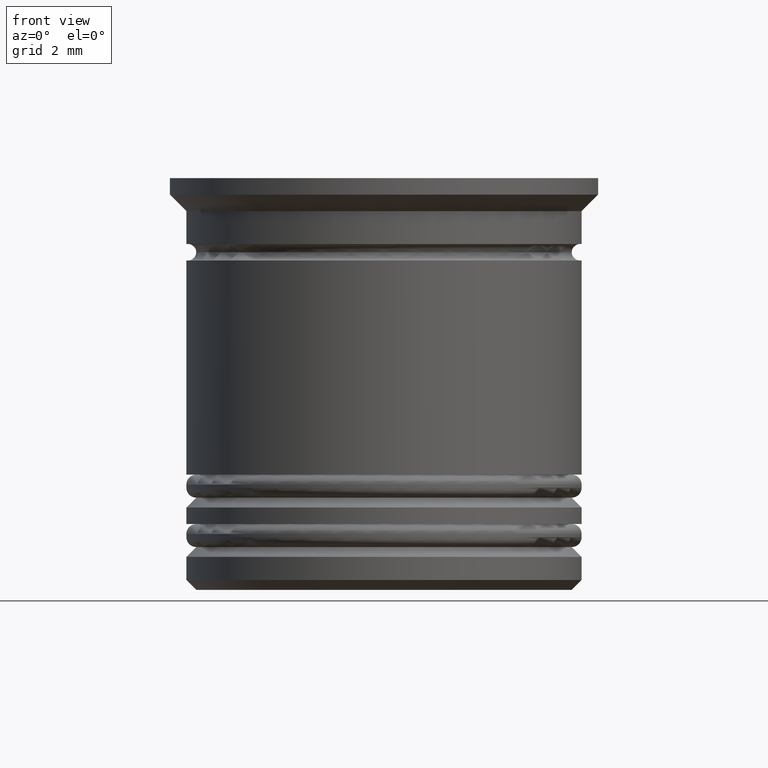
[diagram: clean part render]
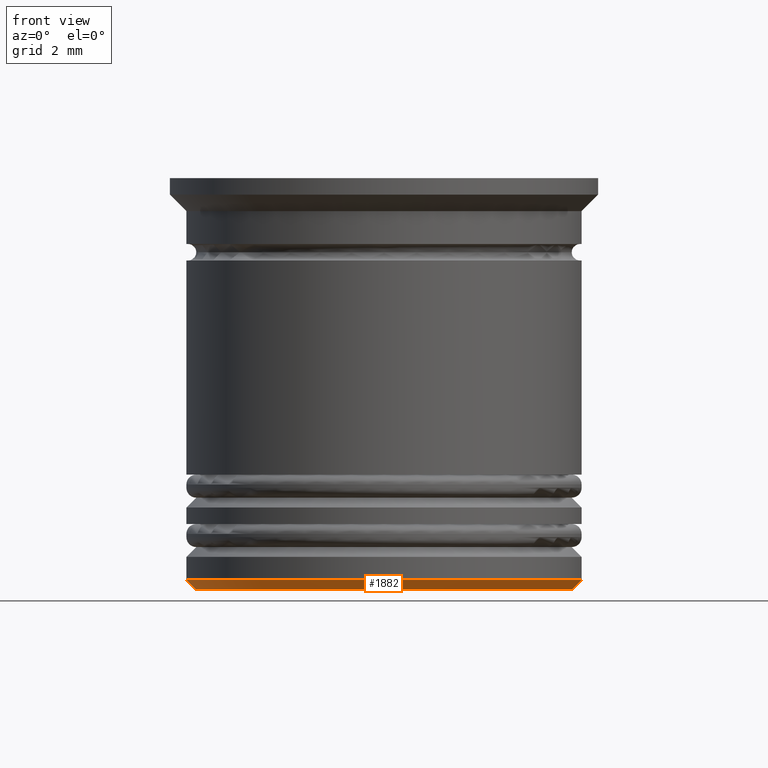
[diagram: same view with one face highlighted and labeled with its STEP entity id]
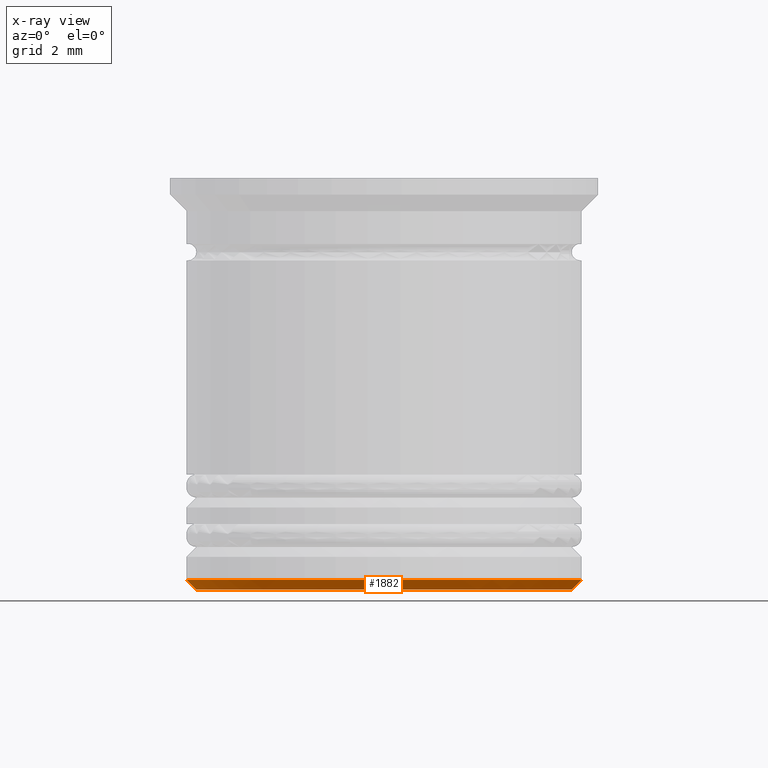
[diagram: x-ray of the same camera — body ghosted, the highlighted face saturated]
A machine part, front view. The second image highlights one B-rep face of the part: STEP entity #1882.
The next image is the same camera in x-ray: the body ghosted, the highlighted face saturated — about 0% of this face is hidden behind the body in this view.
In plain terms, the highlighted conical surface has half-angle 45 deg.
Its self-contained STEP definition (entity closure, byte-faithful):
#54 = VERTEX_POINT ( 'NONE', #454 ) ;
#81 = DIRECTION ( 'NONE',  ( 1.000000000000000000, 0.000000000000000000, 0.000000000000000000 ) ) ;
#101 = VECTOR ( 'NONE', #405, 999.9999999999998863 ) ;
#187 = EDGE_CURVE ( 'NONE', #1671, #54, #1604, .T. ) ;
#205 = AXIS2_PLACEMENT_3D ( 'NONE', #220, #330, #791 ) ;
#217 = DIRECTION ( 'NONE',  ( 0.7071067811865486830, 0.000000000000000000, 0.7071067811865464625 ) ) ;
#220 = CARTESIAN_POINT ( 'NONE',  ( 0.000000000000000000, 0.000000000000000000, -12.50000000000000000 ) ) ;
#229 = CARTESIAN_POINT ( 'NONE',  ( 0.000000000000000000, 0.000000000000000000, -12.19999999999999574 ) ) ;
#304 = ORIENTED_EDGE ( 'NONE', *, *, #187, .F. ) ;
#309 = EDGE_CURVE ( 'NONE', #946, #1671, #1442, .T. ) ;
#330 = DIRECTION ( 'NONE',  ( 0.000000000000000000, 0.000000000000000000, -1.000000000000000000 ) ) ;
#394 = CONICAL_SURFACE ( 'NONE', #899, 6.000000000000001776, 0.7853981633974497223 ) ;
#405 = DIRECTION ( 'NONE',  ( -0.7071067811865486830, 8.659560562354945184E-17, 0.7071067811865464625 ) ) ;
#454 = CARTESIAN_POINT ( 'NONE',  ( 6.000000000000001776, 0.000000000000000000, -12.19999999999999574 ) ) ;
#515 = LINE ( 'NONE', #1118, #933 ) ;
#670 = EDGE_LOOP ( 'NONE', ( #1002, #713, #1079, #304 ) ) ;
#713 = ORIENTED_EDGE ( 'NONE', *, *, #1410, .F. ) ;
#791 = DIRECTION ( 'NONE',  ( -1.000000000000000000, 0.000000000000000000, 0.000000000000000000 ) ) ;
#833 = DIRECTION ( 'NONE',  ( -0.000000000000000000, -0.000000000000000000, 1.000000000000000000 ) ) ;
#899 = AXIS2_PLACEMENT_3D ( 'NONE', #1131, #833, #81 ) ;
#933 = VECTOR ( 'NONE', #217, 999.9999999999998863 ) ;
#946 = VERTEX_POINT ( 'NONE', #1894 ) ;
#949 = EDGE_CURVE ( 'NONE', #1521, #54, #515, .T. ) ;
#1002 = ORIENTED_EDGE ( 'NONE', *, *, #309, .F. ) ;
#1023 = AXIS2_PLACEMENT_3D ( 'NONE', #229, #1591, #1902 ) ;
#1079 = ORIENTED_EDGE ( 'NONE', *, *, #949, .T. ) ;
#1118 = CARTESIAN_POINT ( 'NONE',  ( 6.000000000000001776, 0.000000000000000000, -12.19999999999999574 ) ) ;
#1131 = CARTESIAN_POINT ( 'NONE',  ( 0.000000000000000000, 0.000000000000000000, -12.19999999999999574 ) ) ;
#1410 = EDGE_CURVE ( 'NONE', #1521, #946, #1943, .T. ) ;
#1442 = LINE ( 'NONE', #1913, #101 ) ;
#1521 = VERTEX_POINT ( 'NONE', #1621 ) ;
#1591 = DIRECTION ( 'NONE',  ( -0.000000000000000000, -0.000000000000000000, 1.000000000000000000 ) ) ;
#1604 = CIRCLE ( 'NONE', #1023, 6.000000000000001776 ) ;
#1621 = CARTESIAN_POINT ( 'NONE',  ( 5.699999999999995737, 0.000000000000000000, -12.50000000000000000 ) ) ;
#1637 = FACE_OUTER_BOUND ( 'NONE', #670, .T. ) ;
#1671 = VERTEX_POINT ( 'NONE', #1684 ) ;
#1684 = CARTESIAN_POINT ( 'NONE',  ( -6.000000000000001776, 7.347880794884121708E-16, -12.19999999999999574 ) ) ;
#1882 = ADVANCED_FACE ( 'NONE', ( #1637 ), #394, .T. ) ;
#1894 = CARTESIAN_POINT ( 'NONE',  ( -5.699999999999995737, 7.164183775012013464E-16, -12.50000000000000000 ) ) ;
#1902 = DIRECTION ( 'NONE',  ( -1.000000000000000000, 0.000000000000000000, 0.000000000000000000 ) ) ;
#1913 = CARTESIAN_POINT ( 'NONE',  ( -6.000000000000001776, 7.347880794884120722E-16, -12.19999999999999574 ) ) ;
#1943 = CIRCLE ( 'NONE', #205, 5.699999999999995737 ) ;